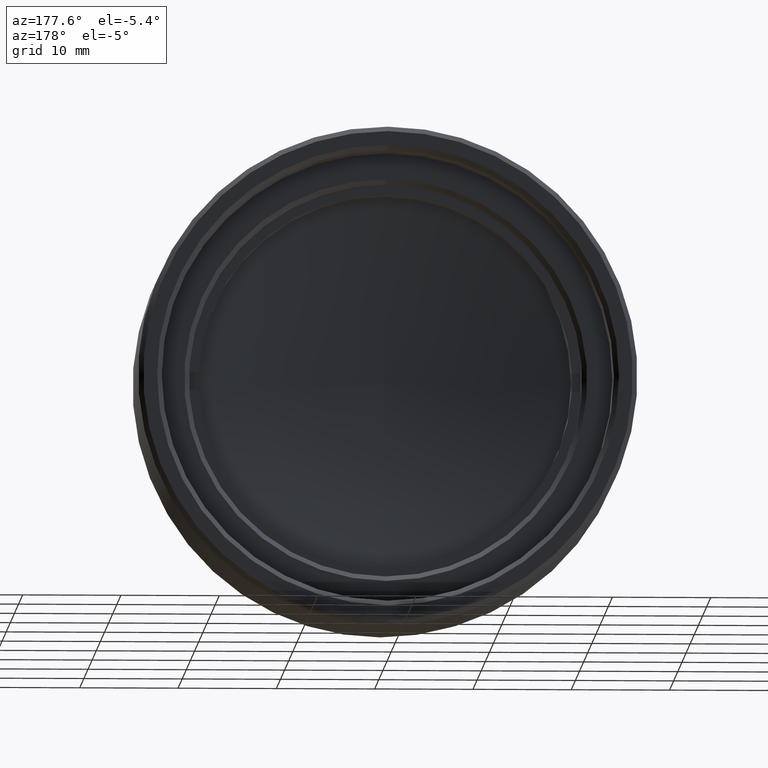
[diagram: clean part render]
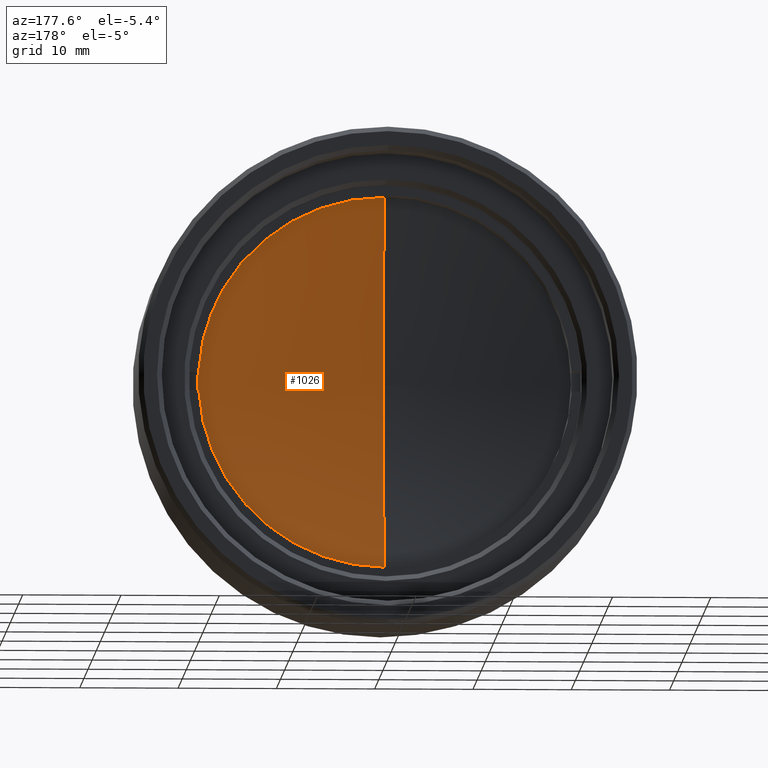
[diagram: same view with one face highlighted and labeled with its STEP entity id]
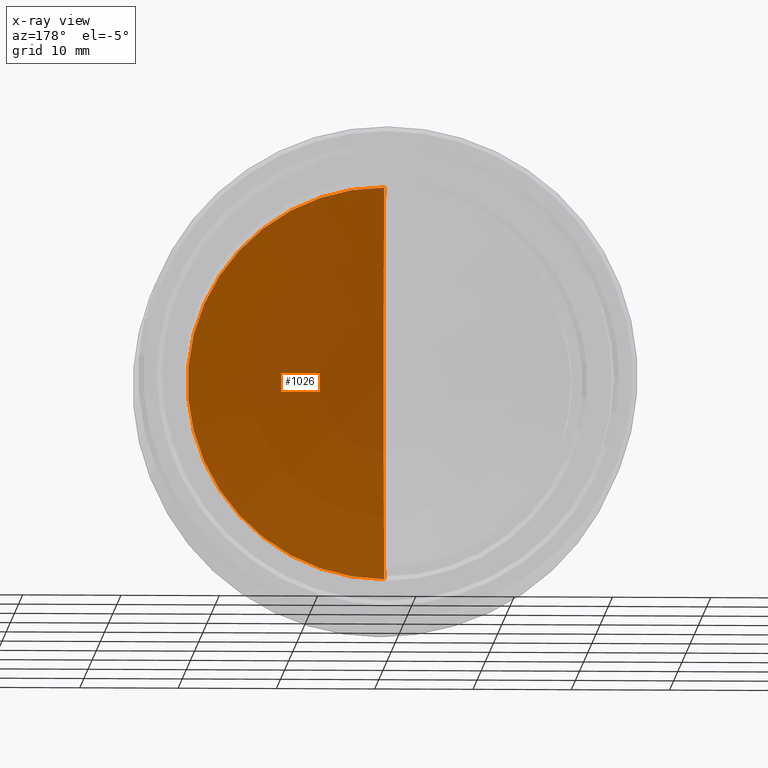
[diagram: x-ray of the same camera — body ghosted, the highlighted face saturated]
A machine part, auxiliary view. The second image highlights one B-rep face of the part: STEP entity #1026.
The next image is the same camera in x-ray: the body ghosted, the highlighted face saturated — about 0% of this face is hidden behind the body in this view.
In plain terms, the highlighted spherical surface has radius 121.22 mm.
Its self-contained STEP definition (entity closure, byte-faithful):
#7 = CARTESIAN_POINT ( 'NONE',  ( -8.905217641199651979, 108.9784418014168068, 26.65036394347447413 ) ) ;
#82 = VERTEX_POINT ( 'NONE', #1492 ) ;
#128 = EDGE_CURVE ( 'NONE', #82, #1303, #1297, .T. ) ;
#275 = DIRECTION ( 'NONE',  ( 1.224646799147353207E-16, -1.000000000000000000, -1.144843079344535345E-16 ) ) ;
#303 = DIRECTION ( 'NONE',  ( -1.224646799147353207E-16, 1.000000000000000000, 0.000000000000000000 ) ) ;
#343 = CARTESIAN_POINT ( 'NONE',  ( -8.905217641199634215, -10.58028184516615688, 6.650363943474537187 ) ) ;
#503 = EDGE_CURVE ( 'NONE', #1303, #82, #1429, .T. ) ;
#575 = DIRECTION ( 'NONE',  ( -1.000000000000000000, -1.224646799147353207E-16, 0.000000000000000000 ) ) ;
#630 = AXIS2_PLACEMENT_3D ( 'NONE', #721, #303, #1361 ) ;
#721 = CARTESIAN_POINT ( 'NONE',  ( -8.905217641199635992, -10.58028184516615688, 26.65036394347453097 ) ) ;
#729 = AXIS2_PLACEMENT_3D ( 'NONE', #7, #275, #1207 ) ;
#822 = ORIENTED_EDGE ( 'NONE', *, *, #503, .T. ) ;
#857 = AXIS2_PLACEMENT_3D ( 'NONE', #1090, #575, #1253 ) ;
#1026 = ADVANCED_FACE ( 'NONE', ( #1190 ), #1343, .F. ) ;
#1090 = CARTESIAN_POINT ( 'NONE',  ( -8.905217641199651979, 108.9784418014168068, 26.65036394347447413 ) ) ;
#1190 = FACE_OUTER_BOUND ( 'NONE', #1258, .T. ) ;
#1207 = DIRECTION ( 'NONE',  ( 0.000000000000000000, -1.144843079344535345E-16, 1.000000000000000000 ) ) ;
#1253 = DIRECTION ( 'NONE',  ( 0.000000000000000000, 0.000000000000000000, -1.000000000000000000 ) ) ;
#1258 = EDGE_LOOP ( 'NONE', ( #1494, #822 ) ) ;
#1297 = CIRCLE ( 'NONE', #630, 20.00000000000000355 ) ;
#1303 = VERTEX_POINT ( 'NONE', #343 ) ;
#1343 = SPHERICAL_SURFACE ( 'NONE', #729, 121.2199999999999989 ) ;
#1361 = DIRECTION ( 'NONE',  ( 0.000000000000000000, 0.000000000000000000, 1.000000000000000000 ) ) ;
#1429 = CIRCLE ( 'NONE', #857, 121.2199999999999989 ) ;
#1492 = CARTESIAN_POINT ( 'NONE',  ( -8.905217641199635992, -10.58028184516615688, 46.65036394347453808 ) ) ;
#1494 = ORIENTED_EDGE ( 'NONE', *, *, #128, .T. ) ;